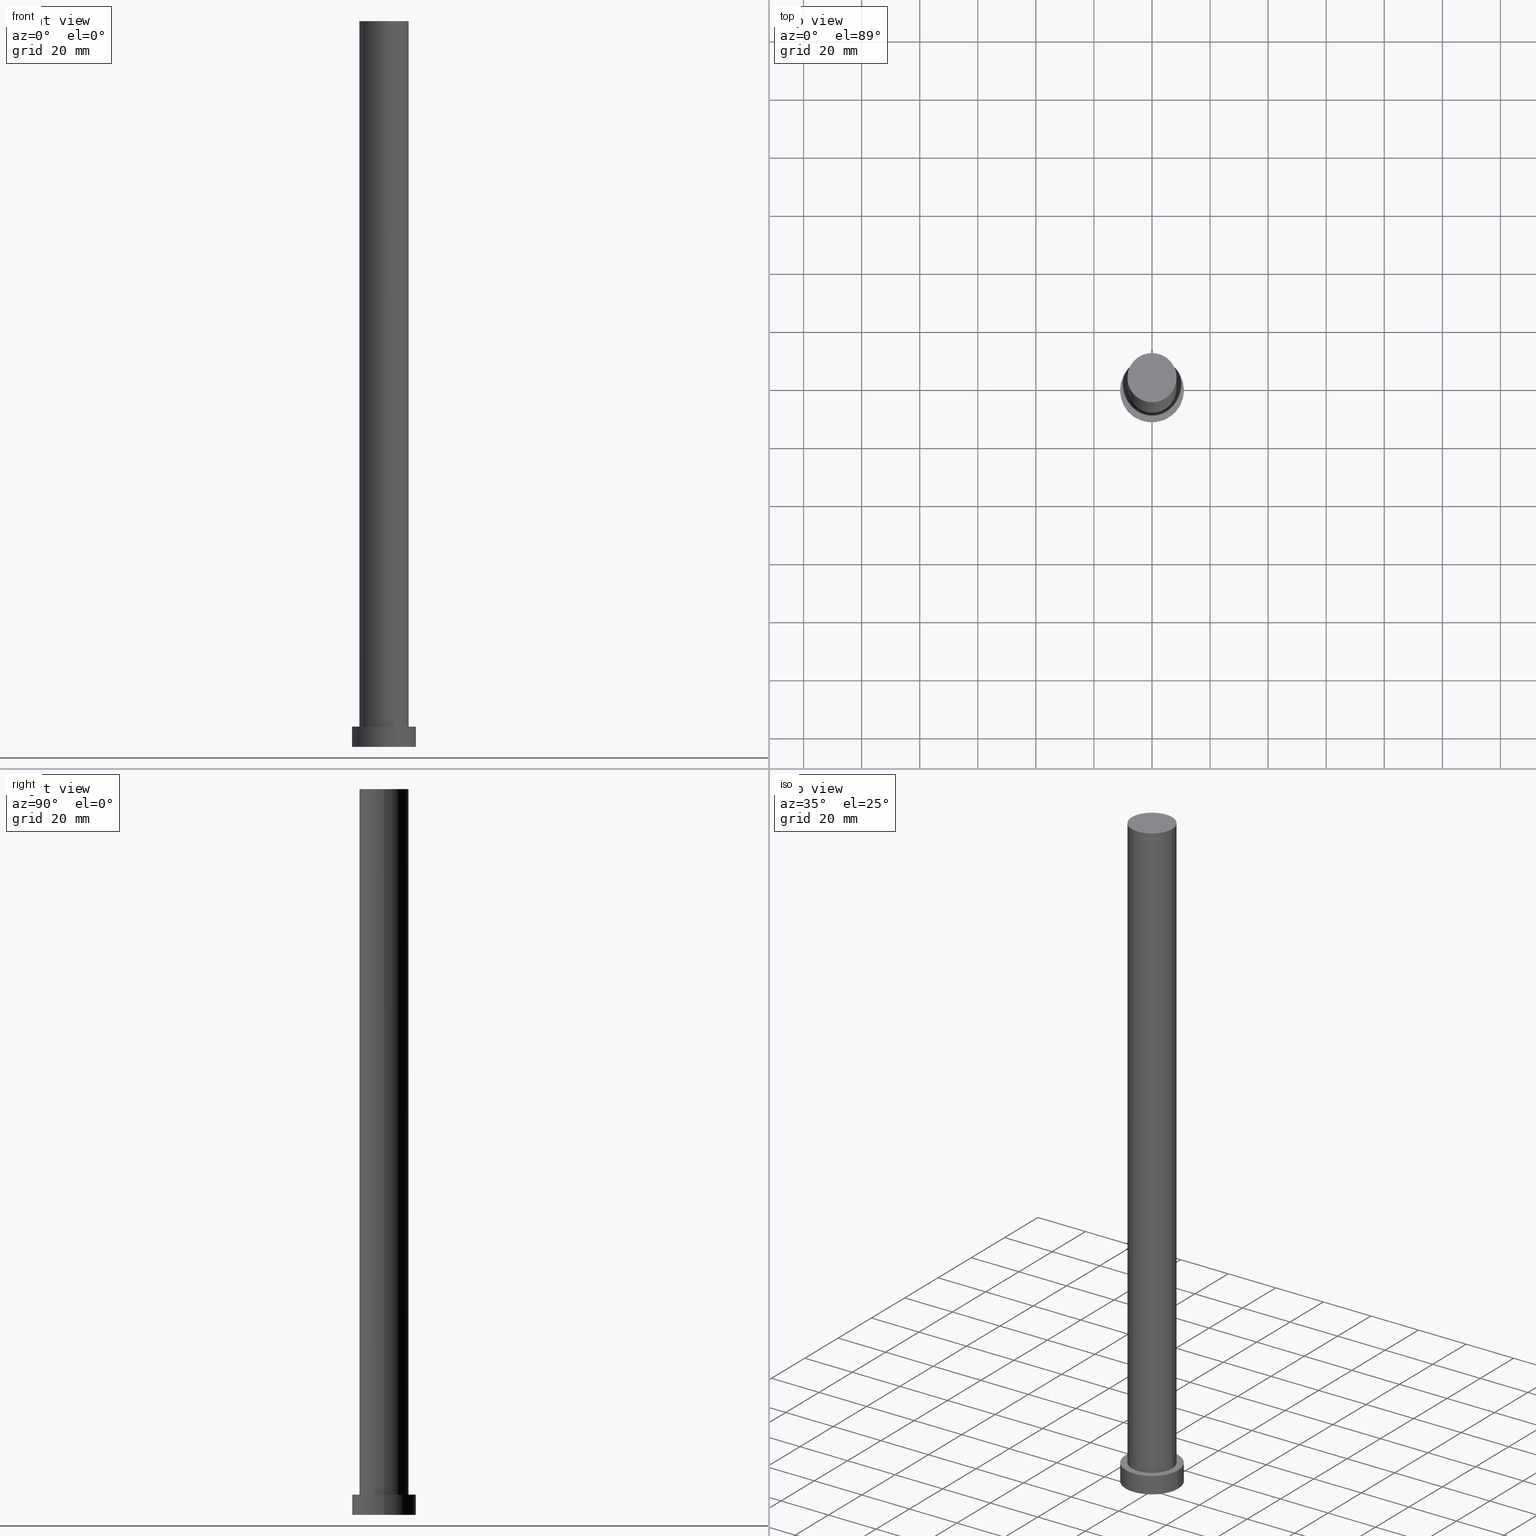
[diagram: canonical four-view strip — front | top / right | iso, engineering-drawing reading convention]
A machine part, canonical four-view strip (front | top / right | iso — engineering-drawing reading convention). The complete STEP part file that produces these views, byte-faithful:
ISO-10303-21;
HEADER;
FILE_DESCRIPTION (( 'STEP AP203' ),
    '1' );
FILE_NAME ('80ea.STEP',
    '2023-02-13T08:46:46',
    ( '' ),
    ( '' ),
    'SwSTEP 2.0',
    'SolidWorks 2019',
    '' );
FILE_SCHEMA (( 'CONFIG_CONTROL_DESIGN' ));
ENDSEC;

DATA;
#1 = CIRCLE ( 'NONE', #52, 8.500000000000000000 ) ;
#2 = APPROVAL_PERSON_ORGANIZATION ( #114, #186, #220 ) ;
#3 = ORIENTED_EDGE ( 'NONE', *, *, #199, .F. ) ;
#4 = CALENDAR_DATE ( 2023, 13, 2 ) ;
#5 = VERTEX_POINT ( 'NONE', #30 ) ;
#6 = EDGE_CURVE ( 'NONE', #93, #11, #142, .T. ) ;
#7 = CLOSED_SHELL ( 'NONE', ( #215, #123, #172, #13, #80, #63, #38 ) ) ;
#8 = ORIENTED_EDGE ( 'NONE', *, *, #44, .T. ) ;
#9 = DIRECTION ( 'NONE',  ( 1.000000000000000000, 0.000000000000000000, 0.000000000000000000 ) ) ;
#10 =( NAMED_UNIT ( * ) SI_UNIT ( $, .STERADIAN. ) SOLID_ANGLE_UNIT ( ) );
#11 = VERTEX_POINT ( 'NONE', #253 ) ;
#12 = DIRECTION ( 'NONE',  ( -0.000000000000000000, -0.000000000000000000, -1.000000000000000000 ) ) ;
#13 = ADVANCED_FACE ( 'NONE', ( #55, #68 ), #96, .T. ) ;
#14 = APPLICATION_CONTEXT ( 'configuration controlled 3d designs of mechanical parts and assemblies' ) ;
#15 = CARTESIAN_POINT ( 'NONE',  ( 0.000000000000000000, 0.000000000000000000, 7.000000000000000000 ) ) ;
#16 = CC_DESIGN_DATE_AND_TIME_ASSIGNMENT ( #234, #54, ( #37 ) ) ;
#17 = ORIENTED_EDGE ( 'NONE', *, *, #212, .T. ) ;
#18 = CARTESIAN_POINT ( 'NONE',  ( 0.000000000000000000, 0.000000000000000000, 250.0000000000000000 ) ) ;
#19 = ORIENTED_EDGE ( 'NONE', *, *, #191, .F. ) ;
#20 = EDGE_CURVE ( 'NONE', #5, #92, #1, .T. ) ;
#21 = CC_DESIGN_APPROVAL ( #186, ( #66 ) ) ;
#22 = CARTESIAN_POINT ( 'NONE',  ( 0.000000000000000000, 0.000000000000000000, 250.0000000000000000 ) ) ;
#23 = APPROVAL_STATUS ( 'not_yet_approved' ) ;
#24 = SECURITY_CLASSIFICATION_LEVEL ( 'unclassified' ) ;
#25 = DATE_AND_TIME ( #157, #129 ) ;
#26 = CARTESIAN_POINT ( 'NONE',  ( 11.00000000000000000, 1.347111479062088405E-15, 0.000000000000000000 ) ) ;
#27 = CC_DESIGN_PERSON_AND_ORGANIZATION_ASSIGNMENT ( #105, #235, ( #159 ) ) ;
#28 = CARTESIAN_POINT ( 'NONE',  ( 11.00000000000000000, 1.347111479062088405E-15, 7.000000000000000000 ) ) ;
#29 = CARTESIAN_POINT ( 'NONE',  ( -8.500000000000000000, 0.000000000000000000, 7.000000000000000000 ) ) ;
#30 = CARTESIAN_POINT ( 'NONE',  ( 8.500000000000000000, 1.040949779275250140E-15, 7.000000000000000000 ) ) ;
#31 = CARTESIAN_POINT ( 'NONE',  ( 0.000000000000000000, 0.000000000000000000, 250.0000000000000000 ) ) ;
#32 = CALENDAR_DATE ( 2023, 13, 2 ) ;
#33 = VERTEX_POINT ( 'NONE', #214 ) ;
#34 = CARTESIAN_POINT ( 'NONE',  ( 0.000000000000000000, 0.000000000000000000, 7.000000000000000000 ) ) ;
#35 = DIRECTION ( 'NONE',  ( 1.000000000000000000, 0.000000000000000000, 0.000000000000000000 ) ) ;
#36 = DIRECTION ( 'NONE',  ( 1.000000000000000000, 0.000000000000000000, 0.000000000000000000 ) ) ;
#37 = SECURITY_CLASSIFICATION ( '', '', #24 ) ;
#38 = ADVANCED_FACE ( 'NONE', ( #250 ), #195, .T. ) ;
#39 = AXIS2_PLACEMENT_3D ( 'NONE', #34, #170, #188 ) ;
#40 = COORDINATED_UNIVERSAL_TIME_OFFSET ( 1, 0, .AHEAD. ) ;
#41 = CARTESIAN_POINT ( 'NONE',  ( -8.500000000000000000, 0.000000000000000000, 250.0000000000000000 ) ) ;
#42 = AXIS2_PLACEMENT_3D ( 'NONE', #79, #160, #106 ) ;
#43 = EDGE_LOOP ( 'NONE', ( #111, #202, #81, #135 ) ) ;
#44 = EDGE_CURVE ( 'NONE', #148, #33, #65, .T. ) ;
#45 = DIRECTION ( 'NONE',  ( 0.000000000000000000, 0.000000000000000000, 1.000000000000000000 ) ) ;
#46 = ORIENTED_EDGE ( 'NONE', *, *, #112, .F. ) ;
#47 = CARTESIAN_POINT ( 'NONE',  ( 0.000000000000000000, 0.000000000000000000, 7.000000000000000000 ) ) ;
#48 = EDGE_LOOP ( 'NONE', ( #46, #208 ) ) ;
#49 = APPLICATION_CONTEXT ( 'configuration controlled 3d designs of mechanical parts and assemblies' ) ;
#50 = EDGE_LOOP ( 'NONE', ( #19, #70, #179, #91 ) ) ;
#51 = ORIENTED_EDGE ( 'NONE', *, *, #191, .T. ) ;
#52 = AXIS2_PLACEMENT_3D ( 'NONE', #98, #132, #36 ) ;
#53 = LINE ( 'NONE', #116, #143 ) ;
#54 = DATE_TIME_ROLE ( 'classification_date' ) ;
#55 = FACE_BOUND ( 'NONE', #226, .T. ) ;
#56 = PERSON_AND_ORGANIZATION ( #230, #89 ) ;
#57 = CC_DESIGN_SECURITY_CLASSIFICATION ( #37, ( #66 ) ) ;
#58 =( NAMED_UNIT ( * ) PLANE_ANGLE_UNIT ( ) SI_UNIT ( $, .RADIAN. ) );
#59 = ORIENTED_EDGE ( 'NONE', *, *, #212, .F. ) ;
#60 = APPROVAL_STATUS ( 'not_yet_approved' ) ;
#61 = DIRECTION ( 'NONE',  ( 0.000000000000000000, 0.000000000000000000, 1.000000000000000000 ) ) ;
#62 = CYLINDRICAL_SURFACE ( 'NONE', #117, 11.00000000000000000 ) ;
#63 = ADVANCED_FACE ( 'NONE', ( #77 ), #198, .T. ) ;
#64 = COORDINATED_UNIVERSAL_TIME_OFFSET ( 1, 0, .AHEAD. ) ;
#65 = CIRCLE ( 'NONE', #109, 11.00000000000000000 ) ;
#66 = PRODUCT_DEFINITION_FORMATION_WITH_SPECIFIED_SOURCE ( 'LIBOVOLN�', '', #144, .NOT_KNOWN. ) ;
#67 = DIRECTION ( 'NONE',  ( 1.000000000000000000, 0.000000000000000000, 0.000000000000000000 ) ) ;
#68 = FACE_OUTER_BOUND ( 'NONE', #118, .T. ) ;
#69 = EDGE_CURVE ( 'NONE', #148, #11, #178, .T. ) ;
#70 = ORIENTED_EDGE ( 'NONE', *, *, #245, .T. ) ;
#71 = DIRECTION ( 'NONE',  ( 1.000000000000000000, 0.000000000000000000, 0.000000000000000000 ) ) ;
#72 = PERSON_AND_ORGANIZATION_ROLE ( 'creator' ) ;
#73 = APPROVAL ( #60, 'NEUR�EN�' ) ;
#74 = CALENDAR_DATE ( 2023, 13, 2 ) ;
#75 = DIRECTION ( 'NONE',  ( -0.000000000000000000, -0.000000000000000000, -1.000000000000000000 ) ) ;
#76 = ADVANCED_BREP_SHAPE_REPRESENTATION ( '80ea', ( #101, #182 ), #216 ) ;
#77 = FACE_OUTER_BOUND ( 'NONE', #249, .T. ) ;
#78 = DATE_TIME_ROLE ( 'creation_date' ) ;
#79 = CARTESIAN_POINT ( 'NONE',  ( 0.000000000000000000, 0.000000000000000000, 250.0000000000000000 ) ) ;
#80 = ADVANCED_FACE ( 'NONE', ( #223 ), #158, .F. ) ;
#81 = ORIENTED_EDGE ( 'NONE', *, *, #69, .T. ) ;
#82 = COORDINATED_UNIVERSAL_TIME_OFFSET ( 1, 0, .AHEAD. ) ;
#83 = CARTESIAN_POINT ( 'NONE',  ( -11.00000000000000000, 0.000000000000000000, 7.000000000000000000 ) ) ;
#84 = ORIENTED_EDGE ( 'NONE', *, *, #20, .F. ) ;
#85 = CARTESIAN_POINT ( 'NONE',  ( -11.00000000000000000, 0.000000000000000000, 7.000000000000000000 ) ) ;
#86 = DIRECTION ( 'NONE',  ( 0.000000000000000000, 0.000000000000000000, 1.000000000000000000 ) ) ;
#87 = AXIS2_PLACEMENT_3D ( 'NONE', #153, #134, #206 ) ;
#88 = MECHANICAL_CONTEXT ( 'NONE', #49, 'mechanical' ) ;
#89 = ORGANIZATION ( 'NEUR�EN�', 'NEUR�EN�', '' ) ;
#90 = APPROVAL_DATE_TIME ( #110, #113 ) ;
#91 = ORIENTED_EDGE ( 'NONE', *, *, #219, .F. ) ;
#92 = VERTEX_POINT ( 'NONE', #29 ) ;
#93 = VERTEX_POINT ( 'NONE', #26 ) ;
#94 = ORIENTED_EDGE ( 'NONE', *, *, #69, .F. ) ;
#95 = VERTEX_POINT ( 'NONE', #200 ) ;
#96 = PLANE ( 'NONE',  #39 ) ;
#97 = AXIS2_PLACEMENT_3D ( 'NONE', #224, #162, #9 ) ;
#98 = CARTESIAN_POINT ( 'NONE',  ( 0.000000000000000000, 0.000000000000000000, 7.000000000000000000 ) ) ;
#99 =( LENGTH_UNIT ( ) NAMED_UNIT ( * ) SI_UNIT ( .MILLI., .METRE. ) );
#100 = APPROVAL_ROLE ( '' ) ;
#101 = MANIFOLD_SOLID_BREP ( 'P�idat vysunut�m3', #7 ) ;
#102 = CALENDAR_DATE ( 2023, 13, 2 ) ;
#103 = CIRCLE ( 'NONE', #87, 11.00000000000000000 ) ;
#104 = DIRECTION ( 'NONE',  ( -0.000000000000000000, -0.000000000000000000, -1.000000000000000000 ) ) ;
#105 = PERSON_AND_ORGANIZATION ( #230, #89 ) ;
#106 = DIRECTION ( 'NONE',  ( -1.000000000000000000, 0.000000000000000000, 0.000000000000000000 ) ) ;
#107 = CARTESIAN_POINT ( 'NONE',  ( 0.000000000000000000, 0.000000000000000000, 250.0000000000000000 ) ) ;
#108 = EDGE_LOOP ( 'NONE', ( #231, #51 ) ) ;
#109 = AXIS2_PLACEMENT_3D ( 'NONE', #145, #147, #232 ) ;
#110 = DATE_AND_TIME ( #32, #126 ) ;
#111 = ORIENTED_EDGE ( 'NONE', *, *, #149, .F. ) ;
#112 = EDGE_CURVE ( 'NONE', #11, #93, #103, .T. ) ;
#113 = APPROVAL ( #184, 'NEUR�EN�' ) ;
#114 = PERSON_AND_ORGANIZATION ( #230, #89 ) ;
#115 = PERSON_AND_ORGANIZATION_ROLE ( 'classification_officer' ) ;
#116 = CARTESIAN_POINT ( 'NONE',  ( 8.500000000000000000, 1.040949779275250140E-15, 250.0000000000000000 ) ) ;
#117 = AXIS2_PLACEMENT_3D ( 'NONE', #15, #201, #121 ) ;
#118 = EDGE_LOOP ( 'NONE', ( #8, #167 ) ) ;
#119 = COORDINATED_UNIVERSAL_TIME_OFFSET ( 1, 0, .AHEAD. ) ;
#120 = DIRECTION ( 'NONE',  ( 1.000000000000000000, 0.000000000000000000, -0.000000000000000000 ) ) ;
#121 = DIRECTION ( 'NONE',  ( -1.000000000000000000, 0.000000000000000000, 0.000000000000000000 ) ) ;
#122 = CC_DESIGN_PERSON_AND_ORGANIZATION_ASSIGNMENT ( #151, #115, ( #37 ) ) ;
#123 = ADVANCED_FACE ( 'NONE', ( #127 ), #62, .T. ) ;
#124 = CARTESIAN_POINT ( 'NONE',  ( 0.000000000000000000, 0.000000000000000000, 0.000000000000000000 ) ) ;
#125 = ORIENTED_EDGE ( 'NONE', *, *, #219, .T. ) ;
#126 = LOCAL_TIME ( 9, 46, 46.00000000000000000, #64 ) ;
#127 = FACE_OUTER_BOUND ( 'NONE', #169, .T. ) ;
#128 = AXIS2_PLACEMENT_3D ( 'NONE', #47, #205, #180 ) ;
#129 = LOCAL_TIME ( 9, 46, 46.00000000000000000, #119 ) ;
#130 = DIRECTION ( 'NONE',  ( 0.000000000000000000, 0.000000000000000000, 1.000000000000000000 ) ) ;
#131 = DATE_AND_TIME ( #74, #221 ) ;
#132 = DIRECTION ( 'NONE',  ( 0.000000000000000000, 0.000000000000000000, 1.000000000000000000 ) ) ;
#133 = CC_DESIGN_APPROVAL ( #73, ( #37 ) ) ;
#134 = DIRECTION ( 'NONE',  ( 0.000000000000000000, 0.000000000000000000, 1.000000000000000000 ) ) ;
#135 = ORIENTED_EDGE ( 'NONE', *, *, #112, .T. ) ;
#136 = CIRCLE ( 'NONE', #229, 8.500000000000000000 ) ;
#137 = CC_DESIGN_PERSON_AND_ORGANIZATION_ASSIGNMENT ( #152, #72, ( #66 ) ) ;
#138 = APPLICATION_PROTOCOL_DEFINITION ( 'international standard', 'config_control_design', 1994, #49 ) ;
#139 = DIRECTION ( 'NONE',  ( 1.000000000000000000, 0.000000000000000000, 0.000000000000000000 ) ) ;
#140 = APPROVAL_PERSON_ORGANIZATION ( #204, #113, #246 ) ;
#141 = CYLINDRICAL_SURFACE ( 'NONE', #128, 11.00000000000000000 ) ;
#142 = CIRCLE ( 'NONE', #189, 11.00000000000000000 ) ;
#143 = VECTOR ( 'NONE', #104, 1000.000000000000000 ) ;
#144 = PRODUCT ( '80ea', '80ea', '', ( #88 ) ) ;
#145 = CARTESIAN_POINT ( 'NONE',  ( 0.000000000000000000, 0.000000000000000000, 7.000000000000000000 ) ) ;
#146 = APPLICATION_PROTOCOL_DEFINITION ( 'international standard', 'config_control_design', 1994, #14 ) ;
#147 = DIRECTION ( 'NONE',  ( 0.000000000000000000, 0.000000000000000000, 1.000000000000000000 ) ) ;
#148 = VERTEX_POINT ( 'NONE', #85 ) ;
#149 = EDGE_CURVE ( 'NONE', #33, #93, #164, .T. ) ;
#150 = DIRECTION ( 'NONE',  ( -0.000000000000000000, -0.000000000000000000, -1.000000000000000000 ) ) ;
#151 = PERSON_AND_ORGANIZATION ( #230, #89 ) ;
#152 = PERSON_AND_ORGANIZATION ( #230, #89 ) ;
#153 = CARTESIAN_POINT ( 'NONE',  ( 0.000000000000000000, 0.000000000000000000, 0.000000000000000000 ) ) ;
#154 = PRODUCT_RELATED_PRODUCT_CATEGORY ( 'detail', '', ( #144 ) ) ;
#155 = LOCAL_TIME ( 9, 46, 46.00000000000000000, #173 ) ;
#156 = SHAPE_DEFINITION_REPRESENTATION ( #225, #76 ) ;
#157 = CALENDAR_DATE ( 2023, 13, 2 ) ;
#158 = PLANE ( 'NONE',  #213 ) ;
#159 = PRODUCT_DEFINITION ( 'NEZN�M�', '', #66, #228 ) ;
#160 = DIRECTION ( 'NONE',  ( -0.000000000000000000, -0.000000000000000000, -1.000000000000000000 ) ) ;
#161 = VECTOR ( 'NONE', #150, 1000.000000000000000 ) ;
#162 = DIRECTION ( 'NONE',  ( 0.000000000000000000, 0.000000000000000000, 1.000000000000000000 ) ) ;
#163 = UNCERTAINTY_MEASURE_WITH_UNIT (LENGTH_MEASURE( 1.000000000000000082E-05 ), #99, 'distance_accuracy_value', 'NONE');
#164 = LINE ( 'NONE', #28, #243 ) ;
#165 = CC_DESIGN_PERSON_AND_ORGANIZATION_ASSIGNMENT ( #56, #177, ( #66 ) ) ;
#166 = VECTOR ( 'NONE', #75, 1000.000000000000000 ) ;
#167 = ORIENTED_EDGE ( 'NONE', *, *, #199, .T. ) ;
#168 = DIRECTION ( 'NONE',  ( 1.000000000000000000, 0.000000000000000000, -0.000000000000000000 ) ) ;
#169 = EDGE_LOOP ( 'NONE', ( #3, #241, #211, #94 ) ) ;
#170 = DIRECTION ( 'NONE',  ( 0.000000000000000000, 0.000000000000000000, 1.000000000000000000 ) ) ;
#171 = DIRECTION ( 'NONE',  ( 0.000000000000000000, 0.000000000000000000, 1.000000000000000000 ) ) ;
#172 = ADVANCED_FACE ( 'NONE', ( #247 ), #141, .T. ) ;
#173 = COORDINATED_UNIVERSAL_TIME_OFFSET ( 1, 0, .AHEAD. ) ;
#174 = LINE ( 'NONE', #41, #161 ) ;
#175 = AXIS2_PLACEMENT_3D ( 'NONE', #18, #130, #168 ) ;
#176 = AXIS2_PLACEMENT_3D ( 'NONE', #31, #12, #196 ) ;
#177 = PERSON_AND_ORGANIZATION_ROLE ( 'design_supplier' ) ;
#178 = LINE ( 'NONE', #83, #166 ) ;
#179 = ORIENTED_EDGE ( 'NONE', *, *, #20, .T. ) ;
#180 = DIRECTION ( 'NONE',  ( -1.000000000000000000, 0.000000000000000000, 0.000000000000000000 ) ) ;
#181 = DIRECTION ( 'NONE',  ( 1.000000000000000000, 0.000000000000000000, 0.000000000000000000 ) ) ;
#182 = AXIS2_PLACEMENT_3D ( 'NONE', #124, #210, #35 ) ;
#183 = ORIENTED_EDGE ( 'NONE', *, *, #245, .F. ) ;
#184 = APPROVAL_STATUS ( 'not_yet_approved' ) ;
#185 = APPROVAL_PERSON_ORGANIZATION ( #238, #73, #100 ) ;
#186 = APPROVAL ( #23, 'NEUR�EN�' ) ;
#187 = PERSON_AND_ORGANIZATION ( #230, #89 ) ;
#188 = DIRECTION ( 'NONE',  ( 1.000000000000000000, 0.000000000000000000, -0.000000000000000000 ) ) ;
#189 = AXIS2_PLACEMENT_3D ( 'NONE', #192, #171, #67 ) ;
#190 = LOCAL_TIME ( 9, 46, 46.00000000000000000, #40 ) ;
#191 = EDGE_CURVE ( 'NONE', #251, #95, #136, .T. ) ;
#192 = CARTESIAN_POINT ( 'NONE',  ( 0.000000000000000000, 0.000000000000000000, 0.000000000000000000 ) ) ;
#193 = CARTESIAN_POINT ( 'NONE',  ( 8.500000000000000000, 1.040949779275250140E-15, 250.0000000000000000 ) ) ;
#194 = AXIS2_PLACEMENT_3D ( 'NONE', #22, #252, #71 ) ;
#195 = PLANE ( 'NONE',  #175 ) ;
#196 = DIRECTION ( 'NONE',  ( -1.000000000000000000, 0.000000000000000000, 0.000000000000000000 ) ) ;
#197 = AXIS2_PLACEMENT_3D ( 'NONE', #242, #86, #139 ) ;
#198 = CYLINDRICAL_SURFACE ( 'NONE', #42, 8.500000000000000000 ) ;
#199 = EDGE_CURVE ( 'NONE', #33, #148, #209, .T. ) ;
#200 = CARTESIAN_POINT ( 'NONE',  ( -8.500000000000000000, 0.000000000000000000, 250.0000000000000000 ) ) ;
#201 = DIRECTION ( 'NONE',  ( -0.000000000000000000, -0.000000000000000000, -1.000000000000000000 ) ) ;
#202 = ORIENTED_EDGE ( 'NONE', *, *, #44, .F. ) ;
#203 = CYLINDRICAL_SURFACE ( 'NONE', #176, 8.500000000000000000 ) ;
#204 = PERSON_AND_ORGANIZATION ( #230, #89 ) ;
#205 = DIRECTION ( 'NONE',  ( -0.000000000000000000, -0.000000000000000000, -1.000000000000000000 ) ) ;
#206 = DIRECTION ( 'NONE',  ( 1.000000000000000000, 0.000000000000000000, 0.000000000000000000 ) ) ;
#207 = CC_DESIGN_PERSON_AND_ORGANIZATION_ASSIGNMENT ( #187, #248, ( #144 ) ) ;
#208 = ORIENTED_EDGE ( 'NONE', *, *, #6, .F. ) ;
#209 = CIRCLE ( 'NONE', #97, 11.00000000000000000 ) ;
#210 = DIRECTION ( 'NONE',  ( 0.000000000000000000, 0.000000000000000000, 1.000000000000000000 ) ) ;
#211 = ORIENTED_EDGE ( 'NONE', *, *, #6, .T. ) ;
#212 = EDGE_CURVE ( 'NONE', #92, #5, #236, .T. ) ;
#213 = AXIS2_PLACEMENT_3D ( 'NONE', #239, #61, #120 ) ;
#214 = CARTESIAN_POINT ( 'NONE',  ( 11.00000000000000000, 1.347111479062088405E-15, 7.000000000000000000 ) ) ;
#215 = ADVANCED_FACE ( 'NONE', ( #227 ), #203, .T. ) ;
#216 =( GEOMETRIC_REPRESENTATION_CONTEXT ( 3 ) GLOBAL_UNCERTAINTY_ASSIGNED_CONTEXT ( ( #163 ) ) GLOBAL_UNIT_ASSIGNED_CONTEXT ( ( #99, #58, #10 ) ) REPRESENTATION_CONTEXT ( 'NONE', 'WORKASPACE' ) );
#217 = APPROVAL_DATE_TIME ( #25, #186 ) ;
#218 = DATE_AND_TIME ( #102, #155 ) ;
#219 = EDGE_CURVE ( 'NONE', #95, #92, #174, .T. ) ;
#220 = APPROVAL_ROLE ( '' ) ;
#221 = LOCAL_TIME ( 9, 46, 46.00000000000000000, #82 ) ;
#222 = DIRECTION ( 'NONE',  ( -0.000000000000000000, -0.000000000000000000, -1.000000000000000000 ) ) ;
#223 = FACE_OUTER_BOUND ( 'NONE', #48, .T. ) ;
#224 = CARTESIAN_POINT ( 'NONE',  ( 0.000000000000000000, 0.000000000000000000, 7.000000000000000000 ) ) ;
#225 = PRODUCT_DEFINITION_SHAPE ( 'NONE', 'NONE',  #159 ) ;
#226 = EDGE_LOOP ( 'NONE', ( #59, #84 ) ) ;
#227 = FACE_OUTER_BOUND ( 'NONE', #50, .T. ) ;
#228 = DESIGN_CONTEXT ( 'detailed design', #14, 'design' ) ;
#229 = AXIS2_PLACEMENT_3D ( 'NONE', #107, #45, #181 ) ;
#230 = PERSON ( 'NEUR�EN�', 'NEUR�EN�', 'NEUR�EN�', ('NEUR�EN�'), ('NEUR�EN�'), ('NEUR�EN�') ) ;
#231 = ORIENTED_EDGE ( 'NONE', *, *, #254, .T. ) ;
#232 = DIRECTION ( 'NONE',  ( 1.000000000000000000, 0.000000000000000000, 0.000000000000000000 ) ) ;
#233 = CC_DESIGN_DATE_AND_TIME_ASSIGNMENT ( #131, #78, ( #159 ) ) ;
#234 = DATE_AND_TIME ( #4, #190 ) ;
#235 = PERSON_AND_ORGANIZATION_ROLE ( 'creator' ) ;
#236 = CIRCLE ( 'NONE', #197, 8.500000000000000000 ) ;
#237 = ORIENTED_EDGE ( 'NONE', *, *, #254, .F. ) ;
#238 = PERSON_AND_ORGANIZATION ( #230, #89 ) ;
#239 = CARTESIAN_POINT ( 'NONE',  ( 0.000000000000000000, 0.000000000000000000, 0.000000000000000000 ) ) ;
#240 = CIRCLE ( 'NONE', #194, 8.500000000000000000 ) ;
#241 = ORIENTED_EDGE ( 'NONE', *, *, #149, .T. ) ;
#242 = CARTESIAN_POINT ( 'NONE',  ( 0.000000000000000000, 0.000000000000000000, 7.000000000000000000 ) ) ;
#243 = VECTOR ( 'NONE', #222, 1000.000000000000000 ) ;
#244 = CC_DESIGN_APPROVAL ( #113, ( #159 ) ) ;
#245 = EDGE_CURVE ( 'NONE', #251, #5, #53, .T. ) ;
#246 = APPROVAL_ROLE ( '' ) ;
#247 = FACE_OUTER_BOUND ( 'NONE', #43, .T. ) ;
#248 = PERSON_AND_ORGANIZATION_ROLE ( 'design_owner' ) ;
#249 = EDGE_LOOP ( 'NONE', ( #183, #237, #125, #17 ) ) ;
#250 = FACE_OUTER_BOUND ( 'NONE', #108, .T. ) ;
#251 = VERTEX_POINT ( 'NONE', #193 ) ;
#252 = DIRECTION ( 'NONE',  ( 0.000000000000000000, 0.000000000000000000, 1.000000000000000000 ) ) ;
#253 = CARTESIAN_POINT ( 'NONE',  ( -11.00000000000000000, 0.000000000000000000, 0.000000000000000000 ) ) ;
#254 = EDGE_CURVE ( 'NONE', #95, #251, #240, .T. ) ;
#255 = APPROVAL_DATE_TIME ( #218, #73 ) ;
ENDSEC;
END-ISO-10303-21;
